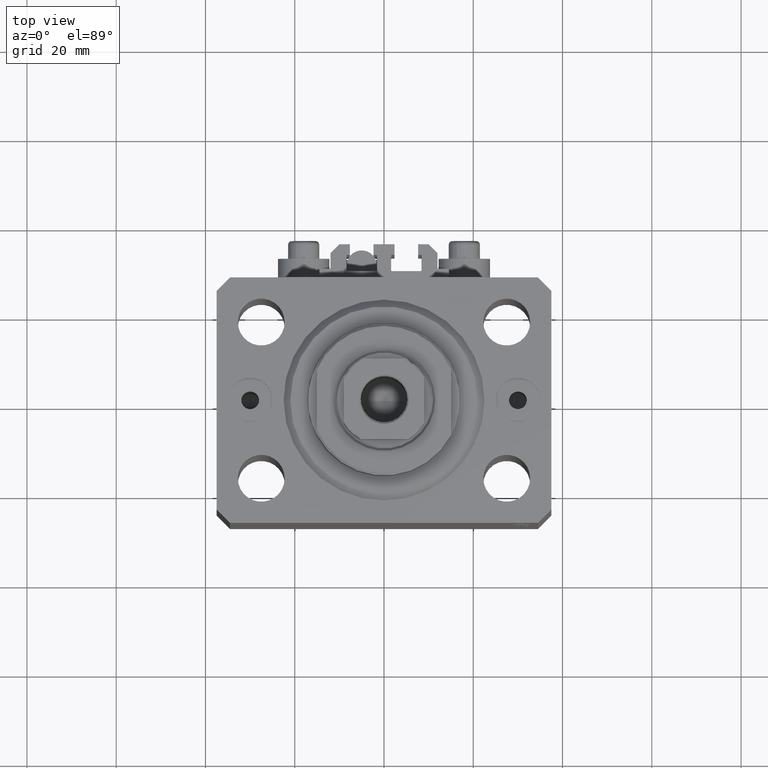
[diagram: clean part render]
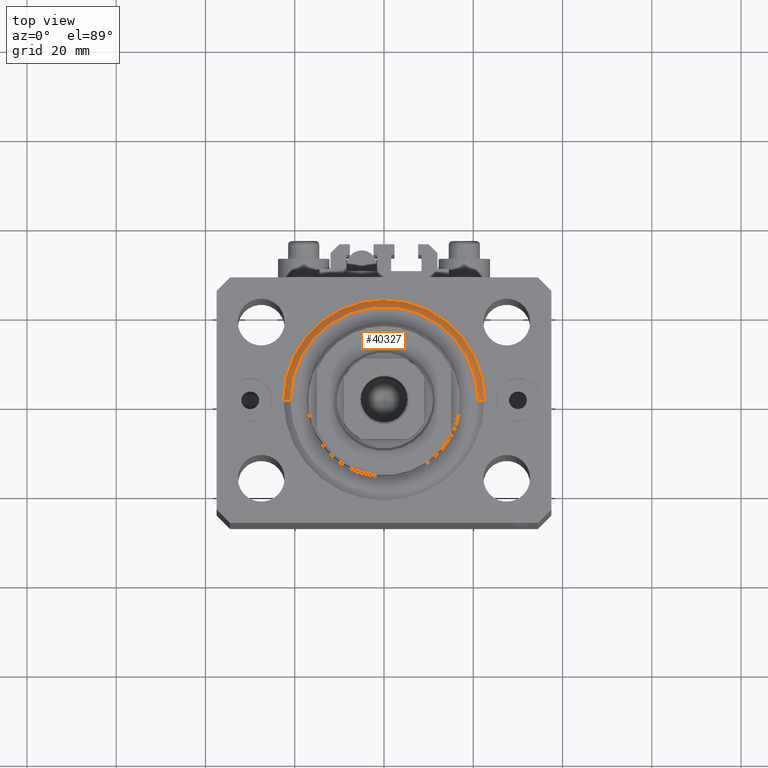
[diagram: same view with one face highlighted and labeled with its STEP entity id]
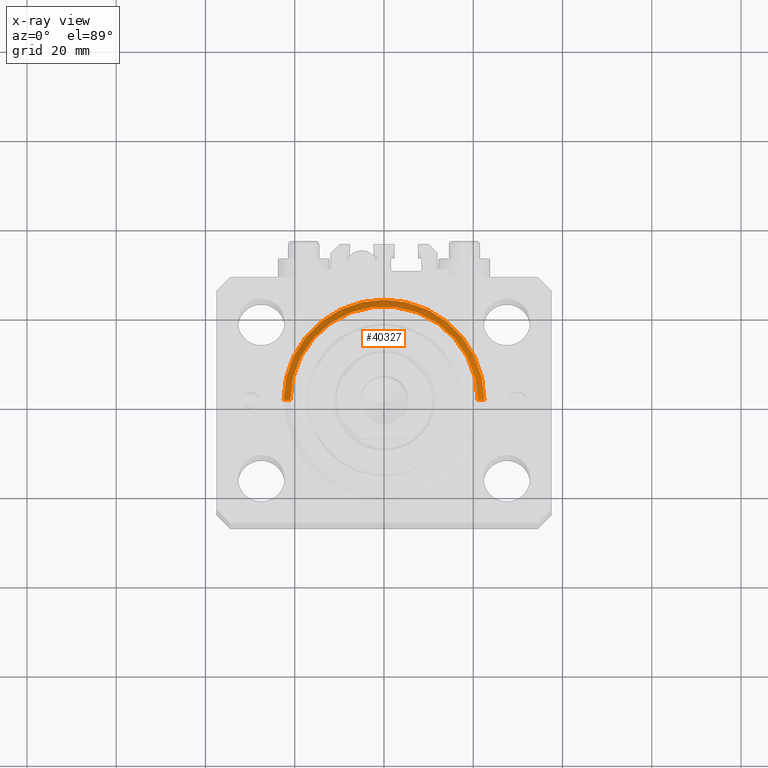
[diagram: x-ray of the same camera — body ghosted, the highlighted face saturated]
A machine part, top view. The second image highlights one B-rep face of the part: STEP entity #40327.
The next image is the same camera in x-ray: the body ghosted, the highlighted face saturated — about 0% of this face is hidden behind the body in this view.
In plain terms, the highlighted conical surface has half-angle 45 deg.
Its self-contained STEP definition (entity closure, byte-faithful):
#258 = DIRECTION ( 'NONE',  ( 1.000000000000000000, 0.000000000000000000, 0.000000000000000000 ) ) ;
#3904 = VERTEX_POINT ( 'NONE', #46609 ) ;
#3903 = DIRECTION ( 'NONE',  ( -0.000000000000000000, -0.000000000000000000, 1.000000000000000000 ) ) ;
#4791 = DIRECTION ( 'NONE',  ( -0.7071067811865500152, 8.659560562354962440E-17, 0.7071067811865451302 ) ) ;
#5488 = FACE_OUTER_BOUND ( 'NONE', #26063, .T. ) ;
#5600 = VECTOR ( 'NONE', #4791, 1000.000000000000114 ) ;
#7916 = CARTESIAN_POINT ( 'NONE',  ( 22.50000000000000355, 2.755455298081544383E-15, 1.500000000000039524 ) ) ;
#8883 = CARTESIAN_POINT ( 'NONE',  ( 0.000000000000000000, 0.000000000000000000, 1.500000000000039524 ) ) ;
#11337 = EDGE_CURVE ( 'NONE', #38540, #38033, #17877, .T. ) ;
#14883 = EDGE_CURVE ( 'NONE', #3904, #22943, #41476, .T. ) ;
#16563 = CARTESIAN_POINT ( 'NONE',  ( 20.99999999999995381, 0.000000000000000000, 0.000000000000000000 ) ) ;
#17877 = LINE ( 'NONE', #21775, #38848 ) ;
#18312 = CONICAL_SURFACE ( 'NONE', #32265, 22.50000000000000355, 0.7853981633974517207 ) ;
#20446 = DIRECTION ( 'NONE',  ( -0.000000000000000000, -0.000000000000000000, -1.000000000000000000 ) ) ;
#21749 = EDGE_CURVE ( 'NONE', #38033, #22943, #39020, .T. ) ;
#21775 = CARTESIAN_POINT ( 'NONE',  ( 22.50000000000000355, 0.000000000000000000, 1.500000000000039524 ) ) ;
#22943 = VERTEX_POINT ( 'NONE', #38085 ) ;
#25354 = ORIENTED_EDGE ( 'NONE', *, *, #21749, .F. ) ;
#26000 = CIRCLE ( 'NONE', #39958, 20.99999999999995381 ) ;
#26063 = EDGE_LOOP ( 'NONE', ( #32023, #34354, #25354, #30516 ) ) ;
#30516 = ORIENTED_EDGE ( 'NONE', *, *, #11337, .F. ) ;
#31147 = CARTESIAN_POINT ( 'NONE',  ( 0.000000000000000000, 0.000000000000000000, 0.000000000000000000 ) ) ;
#31289 = AXIS2_PLACEMENT_3D ( 'NONE', #37897, #3903, #258 ) ;
#32023 = ORIENTED_EDGE ( 'NONE', *, *, #33491, .F. ) ;
#32265 = AXIS2_PLACEMENT_3D ( 'NONE', #8883, #46038, #45802 ) ;
#33190 = DIRECTION ( 'NONE',  ( 0.7071067811865500152, 0.000000000000000000, 0.7071067811865451302 ) ) ;
#33491 = EDGE_CURVE ( 'NONE', #3904, #38540, #26000, .T. ) ;
#34354 = ORIENTED_EDGE ( 'NONE', *, *, #14883, .T. ) ;
#35021 = DIRECTION ( 'NONE',  ( 1.000000000000000000, 0.000000000000000000, 0.000000000000000000 ) ) ;
#37897 = CARTESIAN_POINT ( 'NONE',  ( 0.000000000000000000, 0.000000000000000000, 1.500000000000039524 ) ) ;
#38033 = VERTEX_POINT ( 'NONE', #7916 ) ;
#38067 = CARTESIAN_POINT ( 'NONE',  ( -22.50000000000000355, 2.755455298081545172E-15, 1.500000000000039524 ) ) ;
#38085 = CARTESIAN_POINT ( 'NONE',  ( -22.50000000000000355, 0.000000000000000000, 1.500000000000039524 ) ) ;
#38540 = VERTEX_POINT ( 'NONE', #16563 ) ;
#38848 = VECTOR ( 'NONE', #33190, 1000.000000000000114 ) ;
#39020 = CIRCLE ( 'NONE', #31289, 22.50000000000000355 ) ;
#39958 = AXIS2_PLACEMENT_3D ( 'NONE', #31147, #20446, #35021 ) ;
#40327 = ADVANCED_FACE ( 'NONE', ( #5488 ), #18312, .T. ) ;
#41476 = LINE ( 'NONE', #38067, #5600 ) ;
#45802 = DIRECTION ( 'NONE',  ( 1.000000000000000000, 0.000000000000000000, 0.000000000000000000 ) ) ;
#46038 = DIRECTION ( 'NONE',  ( -0.000000000000000000, -0.000000000000000000, 1.000000000000000000 ) ) ;
#46609 = CARTESIAN_POINT ( 'NONE',  ( -20.99999999999995381, 2.663606788145490261E-15, 0.000000000000000000 ) ) ;